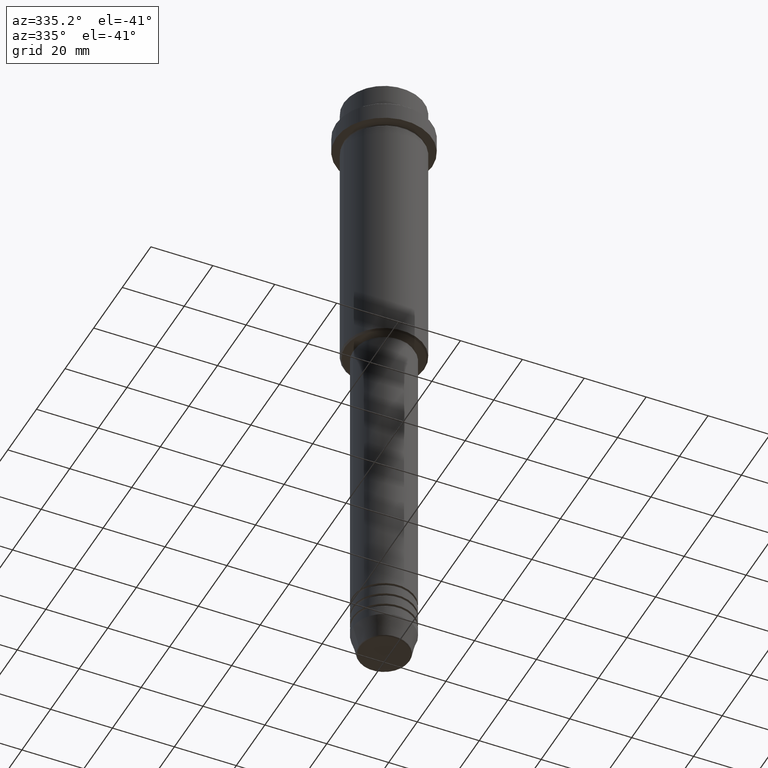
[diagram: clean part render]
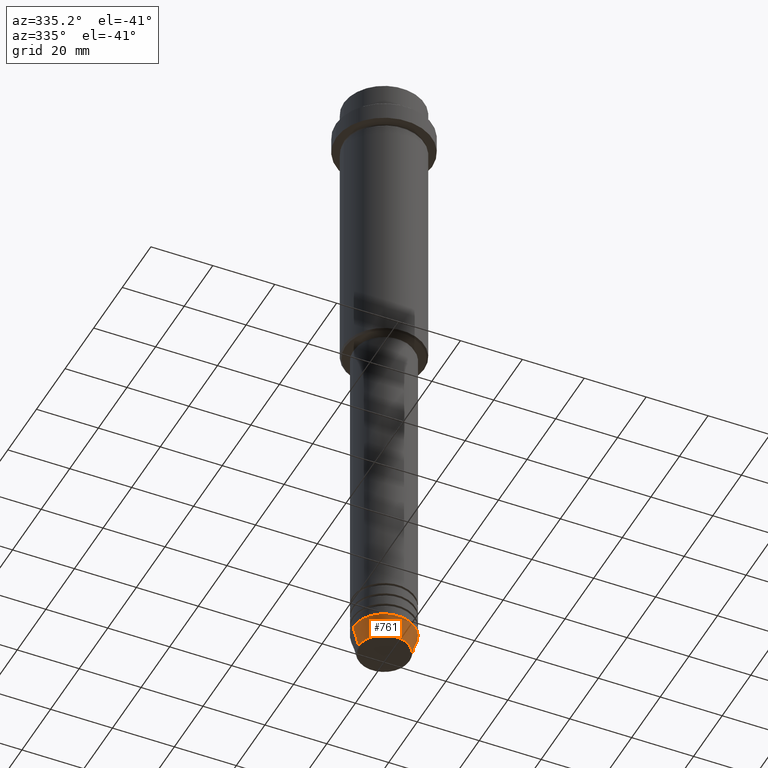
[diagram: same view with one face highlighted and labeled with its STEP entity id]
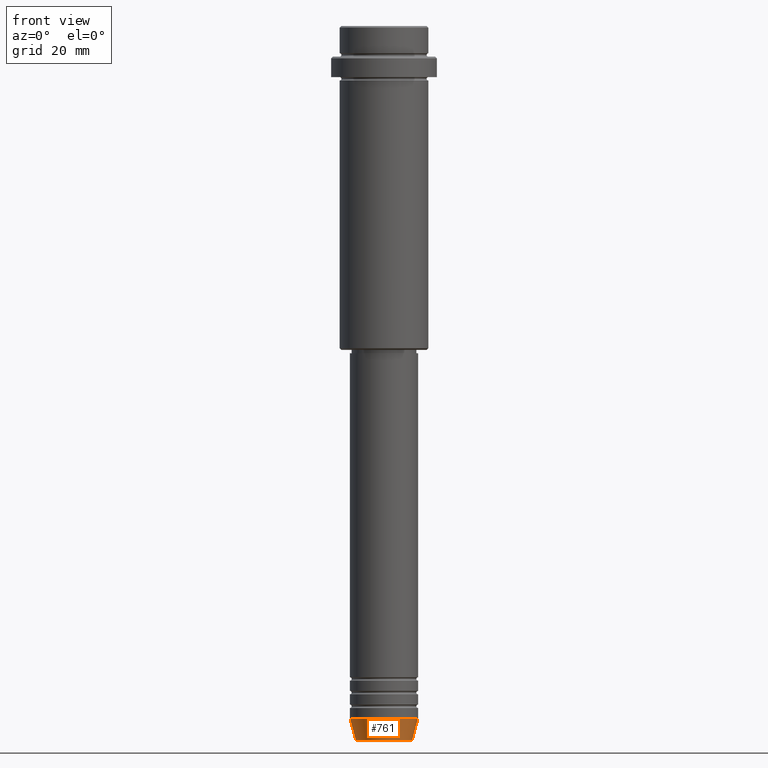
[diagram: same view with one face highlighted and labeled with its STEP entity id]
A machine part, auxiliary view. The second image highlights one B-rep face of the part: STEP entity #761.
A second angle (front view) of the same face is appended — the face is thin or edge-on in the first view.
In plain terms, the highlighted conical surface has half-angle 15 deg.
Its self-contained STEP definition (entity closure, byte-faithful):
#53 = DIRECTION ( 'NONE',  ( -0.000000000000000000, -0.000000000000000000, 1.000000000000000000 ) ) ;
#57 = CIRCLE ( 'NONE', #398, 10.00000000000000000 ) ;
#140 = CARTESIAN_POINT ( 'NONE',  ( -10.00000000000000000, 1.224646799147353256E-15, -203.0000000000000000 ) ) ;
#158 = ORIENTED_EDGE ( 'NONE', *, *, #1307, .T. ) ;
#168 = DIRECTION ( 'NONE',  ( 1.000000000000000000, 0.000000000000000000, 0.000000000000000000 ) ) ;
#189 = CONICAL_SURFACE ( 'NONE', #604, 10.00000000000000000, 0.2617993877991491303 ) ;
#194 = CARTESIAN_POINT ( 'NONE',  ( 8.223655072137193045, 0.000000000000000000, -209.6294095225512990 ) ) ;
#206 = EDGE_CURVE ( 'NONE', #804, #289, #207, .T. ) ;
#207 = LINE ( 'NONE', #650, #1335 ) ;
#274 = CARTESIAN_POINT ( 'NONE',  ( 0.000000000000000000, 0.000000000000000000, -203.0000000000000000 ) ) ;
#289 = VERTEX_POINT ( 'NONE', #140 ) ;
#392 = FACE_OUTER_BOUND ( 'NONE', #418, .T. ) ;
#398 = AXIS2_PLACEMENT_3D ( 'NONE', #274, #1351, #168 ) ;
#418 = EDGE_LOOP ( 'NONE', ( #846, #158, #572, #922 ) ) ;
#468 = AXIS2_PLACEMENT_3D ( 'NONE', #542, #1313, #649 ) ;
#542 = CARTESIAN_POINT ( 'NONE',  ( 0.000000000000000000, 0.000000000000000000, -209.6294095225512990 ) ) ;
#543 = DIRECTION ( 'NONE',  ( -0.2588190451025205174, 3.169619151431761243E-17, 0.9659258262890684232 ) ) ;
#572 = ORIENTED_EDGE ( 'NONE', *, *, #1238, .T. ) ;
#604 = AXIS2_PLACEMENT_3D ( 'NONE', #833, #53, #1261 ) ;
#649 = DIRECTION ( 'NONE',  ( 1.000000000000000000, 0.000000000000000000, 0.000000000000000000 ) ) ;
#650 = CARTESIAN_POINT ( 'NONE',  ( -10.00000000000000000, 1.224646799147353256E-15, -203.0000000000000000 ) ) ;
#697 = CARTESIAN_POINT ( 'NONE',  ( 10.00000000000000000, 0.000000000000000000, -203.0000000000000000 ) ) ;
#707 = LINE ( 'NONE', #697, #1199 ) ;
#744 = CIRCLE ( 'NONE', #468, 8.223655072137193045 ) ;
#761 = ADVANCED_FACE ( 'NONE', ( #392 ), #189, .T. ) ;
#804 = VERTEX_POINT ( 'NONE', #1268 ) ;
#833 = CARTESIAN_POINT ( 'NONE',  ( 0.000000000000000000, 0.000000000000000000, -203.0000000000000000 ) ) ;
#846 = ORIENTED_EDGE ( 'NONE', *, *, #206, .F. ) ;
#922 = ORIENTED_EDGE ( 'NONE', *, *, #1188, .F. ) ;
#1028 = DIRECTION ( 'NONE',  ( 0.2588190451025205174, 0.000000000000000000, 0.9659258262890684232 ) ) ;
#1188 = EDGE_CURVE ( 'NONE', #289, #1343, #57, .T. ) ;
#1199 = VECTOR ( 'NONE', #1028, 1000.000000000000114 ) ;
#1238 = EDGE_CURVE ( 'NONE', #1397, #1343, #707, .T. ) ;
#1261 = DIRECTION ( 'NONE',  ( 1.000000000000000000, 0.000000000000000000, 0.000000000000000000 ) ) ;
#1268 = CARTESIAN_POINT ( 'NONE',  ( -8.223655072137193045, 1.115877042642912251E-15, -209.6294095225512990 ) ) ;
#1283 = CARTESIAN_POINT ( 'NONE',  ( 10.00000000000000000, 0.000000000000000000, -203.0000000000000000 ) ) ;
#1307 = EDGE_CURVE ( 'NONE', #804, #1397, #744, .T. ) ;
#1313 = DIRECTION ( 'NONE',  ( -0.000000000000000000, -0.000000000000000000, 1.000000000000000000 ) ) ;
#1335 = VECTOR ( 'NONE', #543, 1000.000000000000114 ) ;
#1343 = VERTEX_POINT ( 'NONE', #1283 ) ;
#1351 = DIRECTION ( 'NONE',  ( -0.000000000000000000, -0.000000000000000000, 1.000000000000000000 ) ) ;
#1397 = VERTEX_POINT ( 'NONE', #194 ) ;